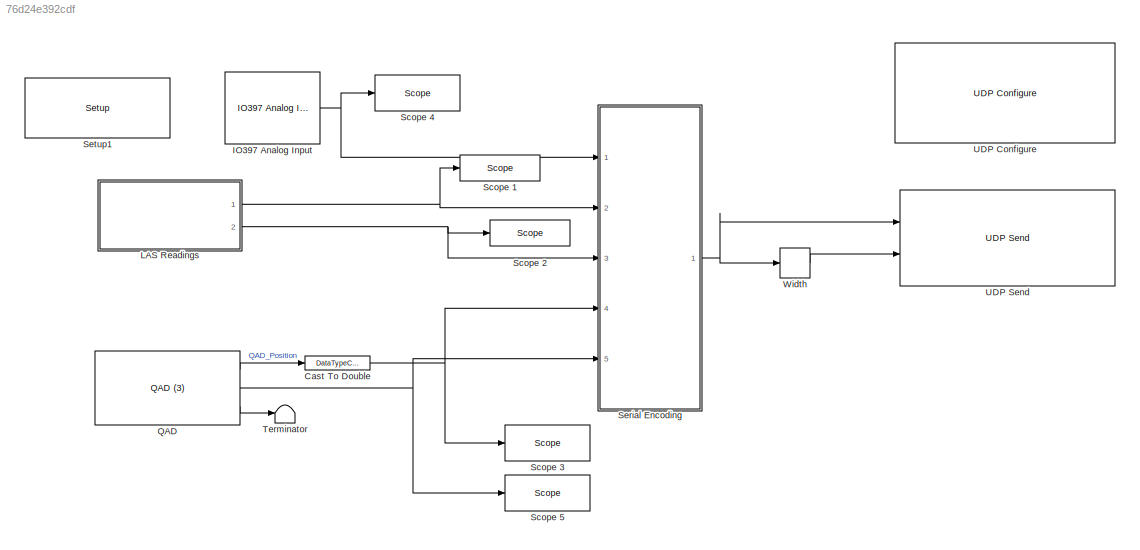
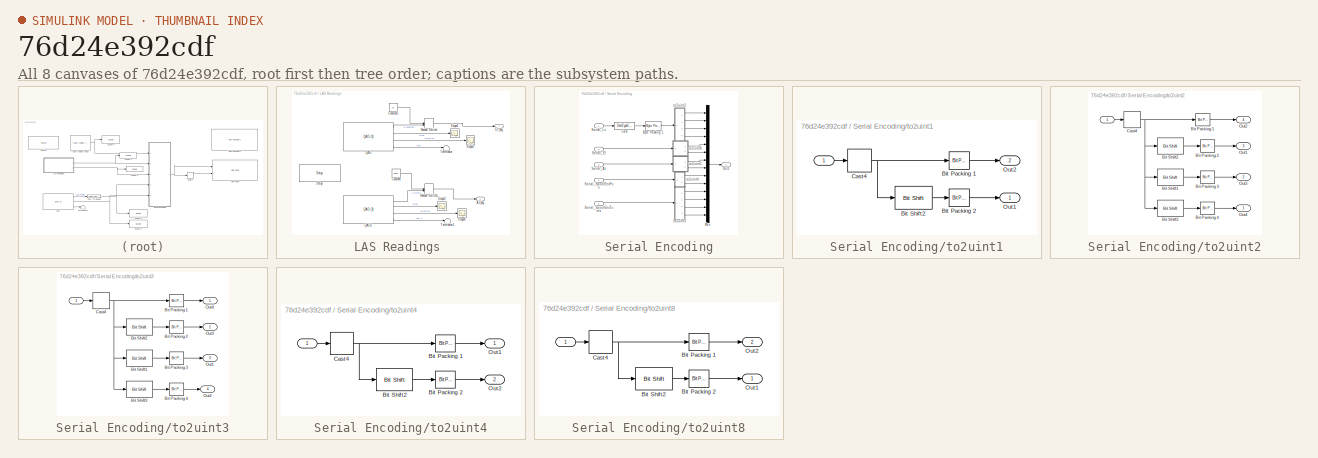
[diagram: thumbnail index - all 8 canvases of the model, root first then tree order]
MODEL slx_76d24e392cdf
KIND model
CONFIG AbsTol = auto
CONFIG EnableMultiTasking = on
CONFIG FixedStep = Ts
CONFIG MaxStep = auto
CONFIG MinStep = auto
CONFIG RelTol = 1e-3
CONFIG SampleTimeConstraint = Unconstrained
CONFIG Solver = FixedStepAuto
CONFIG SolverName = FixedStepAuto
CONFIG StartTime = 0.0
CONFIG StopTime = inf
BLOCK [DataTypeConversion] Cast To Double
  OutDataTypeStr = uint16
  RndMeth = Floor
  SaturateOnIntegerOverflow = off
BLOCK [Reference] IO397 Analog Input  REF=speedgoatlib_fpga_analog_io/IO397 Analog Input
  Ports = [0, 1]
  SourceBlock = speedgoatlib_fpga_analog_io/IO397 Analog Input
  SourceProductName = Simulink Real-Time: Speedgoat I/O Driver Library
  SourceType = ad_IO397
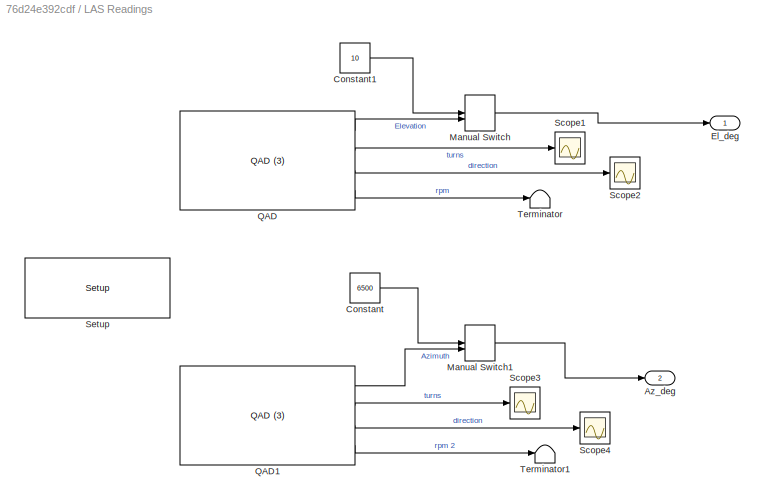
BLOCK [SubSystem] LAS Readings 
  Ports = [0, 2]
  RequestExecContextInheritance = off
BLOCK [Outport] LAS Readings /Az_deg
  Port = 2
BLOCK [Constant] LAS Readings /Constant
  Value = 6500
BLOCK [Constant] LAS Readings /Constant1
  Value = 10
BLOCK [Outport] LAS Readings /El_deg
BLOCK [ManualSwitch] LAS Readings /Manual Switch
  CurrentSetting = 0
BLOCK [ManualSwitch] LAS Readings /Manual Switch1
  CurrentSetting = 0
BLOCK [Reference] LAS Readings /QAD  REF=speedgoatlib_fpga_quadrature/QAD (3)
  Ports = [0, 4]
  SourceBlock = speedgoatlib_fpga_quadrature/QAD (3)
  SourceProductName = Simulink Real-Time: Speedgoat I/O Driver Library
  SourceType = qad_fpga_a3
BLOCK [Reference] LAS Readings /QAD1  REF=speedgoatlib_fpga_quadrature/QAD (3)
  Ports = [0, 4]
  SourceBlock = speedgoatlib_fpga_quadrature/QAD (3)
  SourceProductName = Simulink Real-Time: Speedgoat I/O Driver Library
  SourceType = qad_fpga_a3
BLOCK [Scope] LAS Readings /Scope1
  Floating = off
  NumInputPorts = 1
  Ports = [1]
  ScopeSpecificationString = Simulink.scopes.TimeScopeBlockCfg('CurrentConfiguration', extmgr.ConfigurationSet(extmgr.Configuration('Core','General UI',true),extmgr.Configuration('Core','Source UI',true),extmgr.Configuration('Sources','WiredSimulink',true,'DataLoggingVariableName','ScopeData1'),extmgr.Configuration('Visuals','Time Domain',true,'SerializedDisplays',{struct('MinYLimReal','-1.125','MaxYLimReal','0.125','YLabelRe...<+1381ch>
BLOCK [Scope] LAS Readings /Scope2
  Floating = off
  NumInputPorts = 1
  Ports = [1]
  ScopeSpecificationString = Simulink.scopes.TimeScopeBlockCfg('CurrentConfiguration', extmgr.ConfigurationSet(extmgr.Configuration('Core','General UI',true),extmgr.Configuration('Core','Source UI',true),extmgr.Configuration('Sources','WiredSimulink',true,'DataLoggingVariableName','ScopeData2'),extmgr.Configuration('Visuals','Time Domain',true,'SerializedDisplays',{struct('MinYLimReal','-0.28448','MaxYLimReal','2.56617','YLab...<+1394ch>
BLOCK [Scope] LAS Readings /Scope3
  Floating = off
  NumInputPorts = 1
  Ports = [1]
  ScopeSpecificationString = Simulink.scopes.TimeScopeBlockCfg('CurrentConfiguration', extmgr.ConfigurationSet(extmgr.Configuration('Core','General UI',true),extmgr.Configuration('Core','Source UI',true),extmgr.Configuration('Sources','WiredSimulink',true,'DataLoggingVariableName','ScopeData3'),extmgr.Configuration('Visuals','Time Domain',true,'SerializedDisplays',{struct('MinYLimReal','-1.125','MaxYLimReal','0.125','YLabelRe...<+1381ch>
BLOCK [Scope] LAS Readings /Scope4
  Floating = off
  NumInputPorts = 1
  Ports = [1]
  ScopeSpecificationString = Simulink.scopes.TimeScopeBlockCfg('CurrentConfiguration', extmgr.ConfigurationSet(extmgr.Configuration('Core','General UI',true),extmgr.Configuration('Core','Source UI',true),extmgr.Configuration('Sources','WiredSimulink',true),extmgr.Configuration('Visuals','Time Domain',true,'SerializedDisplays',{struct('MinYLimReal','-1.125','MaxYLimReal','0.125','YLabelReal','','MinYLimMag','0.00000','MaxYLimM...<+1342ch>
BLOCK [Reference] LAS Readings /Setup  REF=speedgoatlib_fpga/Setup/Setup
  Ports = []
  SourceBlock = speedgoatlib_fpga/Setup/Setup
  SourceProductName = Simulink Real-Time: Speedgoat Library
  SourceType = setup_fpga_3
BLOCK [Terminator] LAS Readings /Terminator
BLOCK [Terminator] LAS Readings /Terminator1
BLOCK [Reference] QAD  REF=speedgoatlib_fpga_quadrature/QAD (3)
  Ports = [0, 3]
  SourceBlock = speedgoatlib_fpga_quadrature/QAD (3)
  SourceProductName = Simulink Real-Time: Speedgoat I/O Driver Library
  SourceType = qad_fpga_a3
BLOCK [Reference] Scope 1  REF=slrtlib/Displays and
Logging/Scope 
  Ports = [1]
  SourceBlock = slrtlib/Displays and\nLogging/Scope
  SourceProductBaseCode = XP
  SourceType = xpcscopeblock
BLOCK [Reference] Scope 2  REF=slrtlib/Displays and
Logging/Scope 
  Ports = [1]
  SourceBlock = slrtlib/Displays and\nLogging/Scope
  SourceProductBaseCode = XP
  SourceType = xpcscopeblock
BLOCK [Reference] Scope 3  REF=slrtlib/Displays and
Logging/Scope 
  Ports = [1]
  SourceBlock = slrtlib/Displays and\nLogging/Scope
  SourceProductBaseCode = XP
  SourceType = xpcscopeblock
BLOCK [Reference] Scope 4  REF=slrtlib/Displays and
Logging/Scope 
  Ports = [1]
  SourceBlock = slrtlib/Displays and\nLogging/Scope
  SourceProductBaseCode = XP
  SourceType = xpcscopeblock
BLOCK [Reference] Scope 5  REF=slrtlib/Displays and
Logging/Scope 
  Ports = [1]
  SourceBlock = slrtlib/Displays and\nLogging/Scope
  SourceProductBaseCode = XP
  SourceType = xpcscopeblock
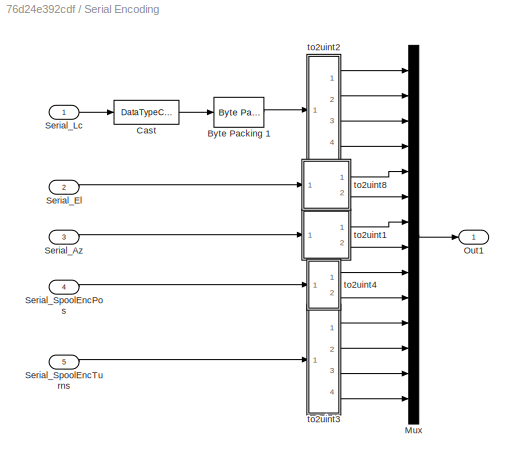
BLOCK [SubSystem] Serial Encoding
  Ports = [5, 1]
  RequestExecContextInheritance = off
BLOCK [Reference] Serial Encoding/Byte Packing 1  REF=xpcutilitieslib/Byte Packing 
  Ports = [1, 1]
  SourceBlock = xpcutilitieslib/Byte Packing
  SourceProductBaseCode = XP
  SourceType = xpcbytepacking
BLOCK [DataTypeConversion] Serial Encoding/Cast
  OutDataTypeStr = single
  RndMeth = Floor
  SaturateOnIntegerOverflow = off
BLOCK [Mux] Serial Encoding/Mux
  DisplayOption = bar
  Inputs = 14
  Ports = [14, 1]
BLOCK [Outport] Serial Encoding/Out1
BLOCK [Inport] Serial Encoding/Serial_Az
  Port = 3
BLOCK [Inport] Serial Encoding/Serial_El 
  Port = 2
BLOCK [Inport] Serial Encoding/Serial_Lc
BLOCK [Inport] Serial Encoding/Serial_SpoolEncPos
  Port = 4
BLOCK [Inport] Serial Encoding/Serial_SpoolEncTurns
  Port = 5
BLOCK [SubSystem] Serial Encoding/to2uint1
  Ports = [1, 2]
  RequestExecContextInheritance = off
BLOCK [Inport] Serial Encoding/to2uint1/ 
BLOCK [Reference] Serial Encoding/to2uint1/Bit Packing 1  REF=xpcutilitieslib/Bit Packing 
  Ports = [1, 1]
  SourceBlock = xpcutilitieslib/Bit Packing
  SourceProductBaseCode = XP
  SourceType = xpcbitpacking
BLOCK [Reference] Serial Encoding/to2uint1/Bit Packing 2  REF=xpcutilitieslib/Bit Packing 
  Ports = [1, 1]
  SourceBlock = xpcutilitieslib/Bit Packing
  SourceProductBaseCode = XP
  SourceType = xpcbitpacking
BLOCK [Reference] Serial Encoding/to2uint1/Bit Shift2  REF=hdlsllib/Logic and Bit
Operations/Bit Shift
  Ports = [1, 1]
  SourceBlock = hdlsllib/Logic and Bit\nOperations/Bit Shift
  SourceProductBaseCode = SL
  SourceType = Bit Shift
BLOCK [DataTypeConversion] Serial Encoding/to2uint1/Cast4
  OutDataTypeStr = uint16
  RndMeth = Floor
  SaturateOnIntegerOverflow = off
BLOCK [Outport] Serial Encoding/to2uint1/Out1
BLOCK [Outport] Serial Encoding/to2uint1/Out2
  Port = 2
BLOCK [SubSystem] Serial Encoding/to2uint2
  Ports = [1, 4]
  RequestExecContextInheritance = off
BLOCK [Inport] Serial Encoding/to2uint2/ 
BLOCK [Reference] Serial Encoding/to2uint2/Bit Packing 1  REF=xpcutilitieslib/Bit Packing 
  Ports = [1, 1]
  SourceBlock = xpcutilitieslib/Bit Packing
  SourceProductBaseCode = XP
  SourceType = xpcbitpacking
BLOCK [Reference] Serial Encoding/to2uint2/Bit Packing 2  REF=xpcutilitieslib/Bit Packing 
  Ports = [1, 1]
  SourceBlock = xpcutilitieslib/Bit Packing
  SourceProductBaseCode = XP
  SourceType = xpcbitpacking
BLOCK [Reference] Serial Encoding/to2uint2/Bit Packing 3  REF=xpcutilitieslib/Bit Packing 
  Ports = [1, 1]
  SourceBlock = xpcutilitieslib/Bit Packing
  SourceProductBaseCode = XP
  SourceType = xpcbitpacking
BLOCK [Reference] Serial Encoding/to2uint2/Bit Packing 4  REF=xpcutilitieslib/Bit Packing 
  Ports = [1, 1]
  SourceBlock = xpcutilitieslib/Bit Packing
  SourceProductBaseCode = XP
  SourceType = xpcbitpacking
BLOCK [Reference] Serial Encoding/to2uint2/Bit Shift1  REF=hdlsllib/Logic and Bit
Operations/Bit Shift
  Ports = [1, 1]
  SourceBlock = hdlsllib/Logic and Bit\nOperations/Bit Shift
  SourceProductBaseCode = SL
  SourceType = Bit Shift
BLOCK [Reference] Serial Encoding/to2uint2/Bit Shift2  REF=hdlsllib/Logic and Bit
Operations/Bit Shift
  Ports = [1, 1]
  SourceBlock = hdlsllib/Logic and Bit\nOperations/Bit Shift
  SourceProductBaseCode = SL
  SourceType = Bit Shift
BLOCK [Reference] Serial Encoding/to2uint2/Bit Shift3  REF=hdlsllib/Logic and Bit
Operations/Bit Shift
  Ports = [1, 1]
  SourceBlock = hdlsllib/Logic and Bit\nOperations/Bit Shift
  SourceProductBaseCode = SL
  SourceType = Bit Shift
BLOCK [DataTypeConversion] Serial Encoding/to2uint2/Cast4
  OutDataTypeStr = uint32
  RndMeth = Floor
  SaturateOnIntegerOverflow = off
BLOCK [Outport] Serial Encoding/to2uint2/Out1
  Port = 3
BLOCK [Outport] Serial Encoding/to2uint2/Out2
  Port = 4
BLOCK [Outport] Serial Encoding/to2uint2/Out3
  Port = 2
BLOCK [Outport] Serial Encoding/to2uint2/Out4
BLOCK [SubSystem] Serial Encoding/to2uint3
  Ports = [1, 4]
  RequestExecContextInheritance = off
BLOCK [Inport] Serial Encoding/to2uint3/ 
BLOCK [Reference] Serial Encoding/to2uint3/Bit Packing 1  REF=xpcutilitieslib/Bit Packing 
  Ports = [1, 1]
  SourceBlock = xpcutilitieslib/Bit Packing
  SourceProductBaseCode = XP
  SourceType = xpcbitpacking
BLOCK [Reference] Serial Encoding/to2uint3/Bit Packing 2  REF=xpcutilitieslib/Bit Packing 
  Ports = [1, 1]
  SourceBlock = xpcutilitieslib/Bit Packing
  SourceProductBaseCode = XP
  SourceType = xpcbitpacking
BLOCK [Reference] Serial Encoding/to2uint3/Bit Packing 3  REF=xpcutilitieslib/Bit Packing 
  Ports = [1, 1]
  SourceBlock = xpcutilitieslib/Bit Packing
  SourceProductBaseCode = XP
  SourceType = xpcbitpacking
BLOCK [Reference] Serial Encoding/to2uint3/Bit Packing 4  REF=xpcutilitieslib/Bit Packing 
  Ports = [1, 1]
  SourceBlock = xpcutilitieslib/Bit Packing
  SourceProductBaseCode = XP
  SourceType = xpcbitpacking
BLOCK [Reference] Serial Encoding/to2uint3/Bit Shift1  REF=hdlsllib/Logic and Bit
Operations/Bit Shift
  Ports = [1, 1]
  SourceBlock = hdlsllib/Logic and Bit\nOperations/Bit Shift
  SourceProductBaseCode = SL
  SourceType = Bit Shift
BLOCK [Reference] Serial Encoding/to2uint3/Bit Shift2  REF=hdlsllib/Logic and Bit
Operations/Bit Shift
  Ports = [1, 1]
  SourceBlock = hdlsllib/Logic and Bit\nOperations/Bit Shift
  SourceProductBaseCode = SL
  SourceType = Bit Shift
BLOCK [Reference] Serial Encoding/to2uint3/Bit Shift3  REF=hdlsllib/Logic and Bit
Operations/Bit Shift
  Ports = [1, 1]
  SourceBlock = hdlsllib/Logic and Bit\nOperations/Bit Shift
  SourceProductBaseCode = SL
  SourceType = Bit Shift
BLOCK [DataTypeConversion] Serial Encoding/to2uint3/Cast4
  OutDataTypeStr = uint32
  RndMeth = Floor
  SaturateOnIntegerOverflow = off
BLOCK [Outport] Serial Encoding/to2uint3/Out1
  Port = 3
BLOCK [Outport] Serial Encoding/to2uint3/Out2
  Port = 4
BLOCK [Outport] Serial Encoding/to2uint3/Out3
  Port = 2
BLOCK [Outport] Serial Encoding/to2uint3/Out4
BLOCK [SubSystem] Serial Encoding/to2uint4
  Ports = [1, 2]
  RequestExecContextInheritance = off
BLOCK [Inport] Serial Encoding/to2uint4/ 
BLOCK [Reference] Serial Encoding/to2uint4/Bit Packing 1  REF=xpcutilitieslib/Bit Packing 
  Ports = [1, 1]
  SourceBlock = xpcutilitieslib/Bit Packing
  SourceProductBaseCode = XP
  SourceType = xpcbitpacking
BLOCK [Reference] Serial Encoding/to2uint4/Bit Packing 2  REF=xpcutilitieslib/Bit Packing 
  Ports = [1, 1]
  SourceBlock = xpcutilitieslib/Bit Packing
  SourceProductBaseCode = XP
  SourceType = xpcbitpacking
BLOCK [Reference] Serial Encoding/to2uint4/Bit Shift2  REF=hdlsllib/Logic and Bit
Operations/Bit Shift
  Ports = [1, 1]
  SourceBlock = hdlsllib/Logic and Bit\nOperations/Bit Shift
  SourceProductBaseCode = SL
  SourceType = Bit Shift
BLOCK [DataTypeConversion] Serial Encoding/to2uint4/Cast4
  OutDataTypeStr = uint16
  RndMeth = Floor
  SaturateOnIntegerOverflow = off
BLOCK [Outport] Serial Encoding/to2uint4/Out1
BLOCK [Outport] Serial Encoding/to2uint4/Out2
  Port = 2
BLOCK [SubSystem] Serial Encoding/to2uint8
  Ports = [1, 2]
  RequestExecContextInheritance = off
BLOCK [Inport] Serial Encoding/to2uint8/ 
BLOCK [Reference] Serial Encoding/to2uint8/Bit Packing 1  REF=xpcutilitieslib/Bit Packing 
  Ports = [1, 1]
  SourceBlock = xpcutilitieslib/Bit Packing
  SourceProductBaseCode = XP
  SourceType = xpcbitpacking
BLOCK [Reference] Serial Encoding/to2uint8/Bit Packing 2  REF=xpcutilitieslib/Bit Packing 
  Ports = [1, 1]
  SourceBlock = xpcutilitieslib/Bit Packing
  SourceProductBaseCode = XP
  SourceType = xpcbitpacking
BLOCK [Reference] Serial Encoding/to2uint8/Bit Shift2  REF=hdlsllib/Logic and Bit
Operations/Bit Shift
  Ports = [1, 1]
  SourceBlock = hdlsllib/Logic and Bit\nOperations/Bit Shift
  SourceProductBaseCode = SL
  SourceType = Bit Shift
BLOCK [DataTypeConversion] Serial Encoding/to2uint8/Cast4
  OutDataTypeStr = uint16
  RndMeth = Floor
  SaturateOnIntegerOverflow = off
BLOCK [Outport] Serial Encoding/to2uint8/Out1
BLOCK [Outport] Serial Encoding/to2uint8/Out2
  Port = 2
BLOCK [Reference] Setup1  REF=speedgoatlib_fpga/Setup/Setup
  Ports = []
  SourceBlock = speedgoatlib_fpga/Setup/Setup
  SourceProductName = Simulink Real-Time: Speedgoat I/O Blockset
  SourceType = setup_fpga_3
BLOCK [Terminator] Terminator
BLOCK [Reference] UDP Configure  REF=xpcrtudplib/UDP Configure
  Ports = []
  Priority = -1
  SourceBlock = xpcrtudplib/UDP Configure
  SourceProductBaseCode = XP
  SourceType = slrtudpconfigure
BLOCK [Reference] UDP Send  REF=xpcrtudplib/UDP Send
  Ports = [2]
  SourceBlock = xpcrtudplib/UDP Send
  SourceProductBaseCode = XP
  SourceType = slrtudpsend
BLOCK [Width] Width
NET Cast To Double:1 -> Scope 3:1, Serial Encoding:4
NET IO397 Analog Input:1 -> Scope 4:1, Serial Encoding:1
LINE LAS Readings /Constant1:1 -> LAS Readings /Manual Switch:1
LINE LAS Readings /Constant:1 -> LAS Readings /Manual Switch1:1
LINE LAS Readings /Manual Switch1:1 -> LAS Readings /Az_deg:1
LINE LAS Readings /Manual Switch:1 -> LAS Readings /El_deg:1
LINE LAS Readings /QAD1:1 -> LAS Readings /Manual Switch1:2
LINE LAS Readings /QAD1:2 -> LAS Readings /Scope3:1
LINE LAS Readings /QAD1:3 -> LAS Readings /Scope4:1
LINE LAS Readings /QAD1:4 -> LAS Readings /Terminator1:1
LINE LAS Readings /QAD:1 -> LAS Readings /Manual Switch:2
LINE LAS Readings /QAD:2 -> LAS Readings /Scope1:1
LINE LAS Readings /QAD:3 -> LAS Readings /Scope2:1
LINE LAS Readings /QAD:4 -> LAS Readings /Terminator:1
NET LAS Readings :1 -> Scope 1:1, Serial Encoding:2
NET LAS Readings :2 -> Scope 2:1, Serial Encoding:3
LINE QAD:1 -> Cast To Double:1
NET QAD:2 -> Scope 5:1, Serial Encoding:5
LINE QAD:3 -> Terminator:1
LINE Serial Encoding/Byte Packing 1:1 -> Serial Encoding/to2uint2:1
LINE Serial Encoding/Cast:1 -> Serial Encoding/Byte Packing 1:1
LINE Serial Encoding/Mux:1 -> Serial Encoding/Out1:1
LINE Serial Encoding/Serial_Az:1 -> Serial Encoding/to2uint1:1
LINE Serial Encoding/Serial_El :1 -> Serial Encoding/to2uint8:1
LINE Serial Encoding/Serial_Lc:1 -> Serial Encoding/Cast:1
LINE Serial Encoding/Serial_SpoolEncPos:1 -> Serial Encoding/to2uint4:1
LINE Serial Encoding/Serial_SpoolEncTurns:1 -> Serial Encoding/to2uint3:1
LINE Serial Encoding/to2uint1/ :1 -> Serial Encoding/to2uint1/Cast4:1
LINE Serial Encoding/to2uint1/Bit Packing 1:1 -> Serial Encoding/to2uint1/Out2:1
LINE Serial Encoding/to2uint1/Bit Packing 2:1 -> Serial Encoding/to2uint1/Out1:1
LINE Serial Encoding/to2uint1/Bit Shift2:1 -> Serial Encoding/to2uint1/Bit Packing 2:1
NET Serial Encoding/to2uint1/Cast4:1 -> Serial Encoding/to2uint1/Bit Packing 1:1, Serial Encoding/to2uint1/Bit Shift2:1
LINE Serial Encoding/to2uint1:1 -> Serial Encoding/Mux:7
LINE Serial Encoding/to2uint1:2 -> Serial Encoding/Mux:8
LINE Serial Encoding/to2uint2/ :1 -> Serial Encoding/to2uint2/Cast4:1
LINE Serial Encoding/to2uint2/Bit Packing 1:1 -> Serial Encoding/to2uint2/Out2:1
LINE Serial Encoding/to2uint2/Bit Packing 2:1 -> Serial Encoding/to2uint2/Out1:1
LINE Serial Encoding/to2uint2/Bit Packing 3:1 -> Serial Encoding/to2uint2/Out3:1
LINE Serial Encoding/to2uint2/Bit Packing 4:1 -> Serial Encoding/to2uint2/Out4:1
LINE Serial Encoding/to2uint2/Bit Shift1:1 -> Serial Encoding/to2uint2/Bit Packing 3:1
LINE Serial Encoding/to2uint2/Bit Shift2:1 -> Serial Encoding/to2uint2/Bit Packing 2:1
LINE Serial Encoding/to2uint2/Bit Shift3:1 -> Serial Encoding/to2uint2/Bit Packing 4:1
NET Serial Encoding/to2uint2/Cast4:1 -> Serial Encoding/to2uint2/Bit Packing 1:1, Serial Encoding/to2uint2/Bit Shift1:1, Serial Encoding/to2uint2/Bit Shift2:1, Serial Encoding/to2uint2/Bit Shift3:1
LINE Serial Encoding/to2uint2:1 -> Serial Encoding/Mux:1
LINE Serial Encoding/to2uint2:2 -> Serial Encoding/Mux:2
LINE Serial Encoding/to2uint2:3 -> Serial Encoding/Mux:3
LINE Serial Encoding/to2uint2:4 -> Serial Encoding/Mux:4
LINE Serial Encoding/to2uint3/ :1 -> Serial Encoding/to2uint3/Cast4:1
LINE Serial Encoding/to2uint3/Bit Packing 1:1 -> Serial Encoding/to2uint3/Out4:1
LINE Serial Encoding/to2uint3/Bit Packing 2:1 -> Serial Encoding/to2uint3/Out3:1
LINE Serial Encoding/to2uint3/Bit Packing 3:1 -> Serial Encoding/to2uint3/Out1:1
LINE Serial Encoding/to2uint3/Bit Packing 4:1 -> Serial Encoding/to2uint3/Out2:1
LINE Serial Encoding/to2uint3/Bit Shift1:1 -> Serial Encoding/to2uint3/Bit Packing 3:1
LINE Serial Encoding/to2uint3/Bit Shift2:1 -> Serial Encoding/to2uint3/Bit Packing 2:1
LINE Serial Encoding/to2uint3/Bit Shift3:1 -> Serial Encoding/to2uint3/Bit Packing 4:1
NET Serial Encoding/to2uint3/Cast4:1 -> Serial Encoding/to2uint3/Bit Packing 1:1, Serial Encoding/to2uint3/Bit Shift1:1, Serial Encoding/to2uint3/Bit Shift2:1, Serial Encoding/to2uint3/Bit Shift3:1
LINE Serial Encoding/to2uint3:1 -> Serial Encoding/Mux:11
LINE Serial Encoding/to2uint3:2 -> Serial Encoding/Mux:12
LINE Serial Encoding/to2uint3:3 -> Serial Encoding/Mux:13
LINE Serial Encoding/to2uint3:4 -> Serial Encoding/Mux:14
LINE Serial Encoding/to2uint4/ :1 -> Serial Encoding/to2uint4/Cast4:1
LINE Serial Encoding/to2uint4/Bit Packing 1:1 -> Serial Encoding/to2uint4/Out1:1
LINE Serial Encoding/to2uint4/Bit Packing 2:1 -> Serial Encoding/to2uint4/Out2:1
LINE Serial Encoding/to2uint4/Bit Shift2:1 -> Serial Encoding/to2uint4/Bit Packing 2:1
NET Serial Encoding/to2uint4/Cast4:1 -> Serial Encoding/to2uint4/Bit Packing 1:1, Serial Encoding/to2uint4/Bit Shift2:1
LINE Serial Encoding/to2uint4:1 -> Serial Encoding/Mux:9
LINE Serial Encoding/to2uint4:2 -> Serial Encoding/Mux:10
LINE Serial Encoding/to2uint8/ :1 -> Serial Encoding/to2uint8/Cast4:1
LINE Serial Encoding/to2uint8/Bit Packing 1:1 -> Serial Encoding/to2uint8/Out2:1
LINE Serial Encoding/to2uint8/Bit Packing 2:1 -> Serial Encoding/to2uint8/Out1:1
LINE Serial Encoding/to2uint8/Bit Shift2:1 -> Serial Encoding/to2uint8/Bit Packing 2:1
NET Serial Encoding/to2uint8/Cast4:1 -> Serial Encoding/to2uint8/Bit Packing 1:1, Serial Encoding/to2uint8/Bit Shift2:1
LINE Serial Encoding/to2uint8:1 -> Serial Encoding/Mux:5
LINE Serial Encoding/to2uint8:2 -> Serial Encoding/Mux:6
NET Serial Encoding:1 -> UDP Send:1, Width:1
LINE Width:1 -> UDP Send:2
note: NET lines group one-source signal fan-out (src -> all destinations, sorted); 1:1 wires keep LINE
